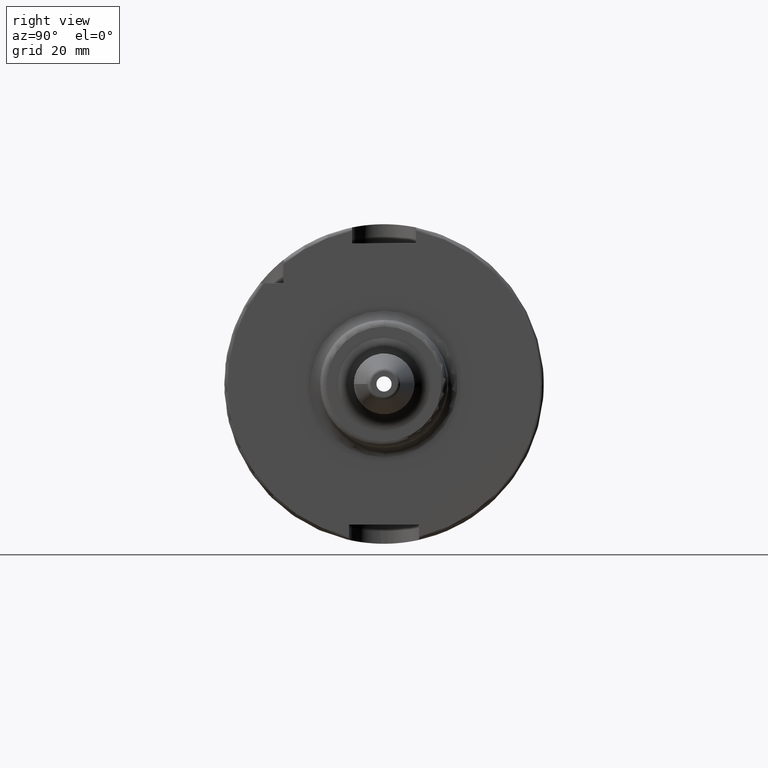
[diagram: clean part render]
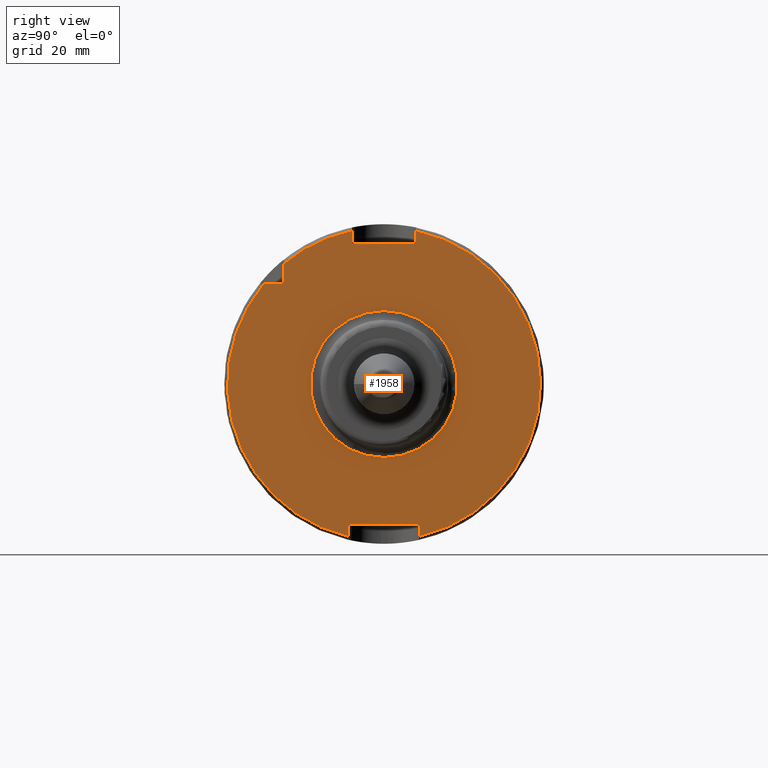
[diagram: same view with one face highlighted and labeled with its STEP entity id]
A machine part, right view. The second image highlights one B-rep face of the part: STEP entity #1958.
In plain terms, the highlighted planar face has unit normal (1, 0, 0).
Its self-contained STEP definition (entity closure, byte-faithful):
#112=LINE('',#3014,#216);
#113=LINE('',#3018,#217);
#114=LINE('',#3020,#218);
#115=LINE('',#3022,#219);
#116=LINE('',#3026,#220);
#117=LINE('',#3028,#221);
#118=LINE('',#3030,#222);
#119=LINE('',#3033,#223);
#216=VECTOR('',#2407,10.);
#217=VECTOR('',#2410,10.);
#218=VECTOR('',#2411,10.);
#219=VECTOR('',#2412,10.);
#220=VECTOR('',#2415,10.);
#221=VECTOR('',#2416,10.);
#222=VECTOR('',#2417,10.);
#223=VECTOR('',#2420,10.);
#354=FACE_BOUND('',#528,.T.);
#364=PLANE('',#2116);
#408=FACE_OUTER_BOUND('',#527,.T.);
#527=EDGE_LOOP('',(#1334,#1335,#1336,#1337,#1338,#1339,#1340,#1341,#1342,
#1343,#1344));
#528=EDGE_LOOP('',(#1345));
#660=CIRCLE('',#2115,23.);
#661=CIRCLE('',#2117,49.);
#662=CIRCLE('',#2118,49.);
#663=CIRCLE('',#2119,49.);
#790=VERTEX_POINT('',#3008);
#791=VERTEX_POINT('',#3012);
#792=VERTEX_POINT('',#3013);
#793=VERTEX_POINT('',#3015);
#794=VERTEX_POINT('',#3017);
#795=VERTEX_POINT('',#3019);
#796=VERTEX_POINT('',#3021);
#797=VERTEX_POINT('',#3023);
#798=VERTEX_POINT('',#3025);
#799=VERTEX_POINT('',#3027);
#800=VERTEX_POINT('',#3029);
#801=VERTEX_POINT('',#3031);
#1000=EDGE_CURVE('',#790,#790,#660,.T.);
#1001=EDGE_CURVE('',#791,#792,#112,.T.);
#1002=EDGE_CURVE('',#792,#793,#661,.T.);
#1003=EDGE_CURVE('',#793,#794,#113,.T.);
#1004=EDGE_CURVE('',#794,#795,#114,.T.);
#1005=EDGE_CURVE('',#795,#796,#115,.T.);
#1006=EDGE_CURVE('',#796,#797,#662,.T.);
#1007=EDGE_CURVE('',#797,#798,#116,.T.);
#1008=EDGE_CURVE('',#798,#799,#117,.T.);
#1009=EDGE_CURVE('',#799,#800,#118,.T.);
#1010=EDGE_CURVE('',#800,#801,#663,.T.);
#1011=EDGE_CURVE('',#801,#791,#119,.T.);
#1334=ORIENTED_EDGE('',*,*,#1001,.T.);
#1335=ORIENTED_EDGE('',*,*,#1002,.T.);
#1336=ORIENTED_EDGE('',*,*,#1003,.T.);
#1337=ORIENTED_EDGE('',*,*,#1004,.T.);
#1338=ORIENTED_EDGE('',*,*,#1005,.T.);
#1339=ORIENTED_EDGE('',*,*,#1006,.T.);
#1340=ORIENTED_EDGE('',*,*,#1007,.T.);
#1341=ORIENTED_EDGE('',*,*,#1008,.T.);
#1342=ORIENTED_EDGE('',*,*,#1009,.T.);
#1343=ORIENTED_EDGE('',*,*,#1010,.T.);
#1344=ORIENTED_EDGE('',*,*,#1011,.T.);
#1345=ORIENTED_EDGE('',*,*,#1000,.F.);
#1958=ADVANCED_FACE('',(#408,#354),#364,.T.);
#2115=AXIS2_PLACEMENT_3D('',#3010,#2403,#2404);
#2116=AXIS2_PLACEMENT_3D('',#3011,#2405,#2406);
#2117=AXIS2_PLACEMENT_3D('',#3016,#2408,#2409);
#2118=AXIS2_PLACEMENT_3D('',#3024,#2413,#2414);
#2119=AXIS2_PLACEMENT_3D('',#3032,#2418,#2419);
#2403=DIRECTION('center_axis',(1.,0.,0.));
#2404=DIRECTION('ref_axis',(0.,-1.,-1.22464679914735E-16));
#2405=DIRECTION('center_axis',(1.,0.,0.));
#2406=DIRECTION('ref_axis',(0.,0.,-1.));
#2407=DIRECTION('',(0.,-1.,0.));
#2408=DIRECTION('center_axis',(1.,0.,0.));
#2409=DIRECTION('ref_axis',(0.,0.,-1.));
#2410=DIRECTION('',(0.,0.,1.));
#2411=DIRECTION('',(0.,1.,0.));
#2412=DIRECTION('',(0.,0.,-1.));
#2413=DIRECTION('center_axis',(1.,0.,0.));
#2414=DIRECTION('ref_axis',(0.,0.,-1.));
#2415=DIRECTION('',(0.,0.,-1.));
#2416=DIRECTION('',(0.,-1.,0.));
#2417=DIRECTION('',(0.,0.,1.));
#2418=DIRECTION('center_axis',(1.,0.,0.));
#2419=DIRECTION('ref_axis',(0.,0.,-1.));
#2420=DIRECTION('',(0.,0.,-1.));
#3008=CARTESIAN_POINT('',(29.,-2.81668763803891E-15,-23.));
#3010=CARTESIAN_POINT('Origin',(29.,0.,0.));
#3011=CARTESIAN_POINT('Origin',(29.,0.,0.));
#3012=CARTESIAN_POINT('',(29.,-31.5,31.5));
#3013=CARTESIAN_POINT('',(29.,-37.5333185316726,31.5));
#3014=CARTESIAN_POINT('',(29.,-18.25,31.5));
#3015=CARTESIAN_POINT('',(29.,-11.,-47.7493455452533));
#3016=CARTESIAN_POINT('Origin',(29.,0.,0.));
#3017=CARTESIAN_POINT('',(29.,-11.,-44.));
#3018=CARTESIAN_POINT('',(29.,-11.,-22.));
#3019=CARTESIAN_POINT('',(29.,11.,-44.));
#3020=CARTESIAN_POINT('',(29.,-5.55111512312578E-16,-44.));
#3021=CARTESIAN_POINT('',(29.,11.,-47.7493455452533));
#3022=CARTESIAN_POINT('',(29.,11.,-22.));
#3023=CARTESIAN_POINT('',(29.,10.,47.9687398208458));
#3024=CARTESIAN_POINT('Origin',(29.,0.,0.));
#3025=CARTESIAN_POINT('',(29.,10.,44.));
#3026=CARTESIAN_POINT('',(29.,10.,22.));
#3027=CARTESIAN_POINT('',(29.,-10.,44.));
#3028=CARTESIAN_POINT('',(29.,0.,44.));
#3029=CARTESIAN_POINT('',(29.,-10.,47.9687398208458));
#3030=CARTESIAN_POINT('',(29.,-10.,22.));
#3031=CARTESIAN_POINT('',(29.,-31.5,37.5333185316726));
#3032=CARTESIAN_POINT('Origin',(29.,0.,0.));
#3033=CARTESIAN_POINT('',(29.,-31.5,15.75));